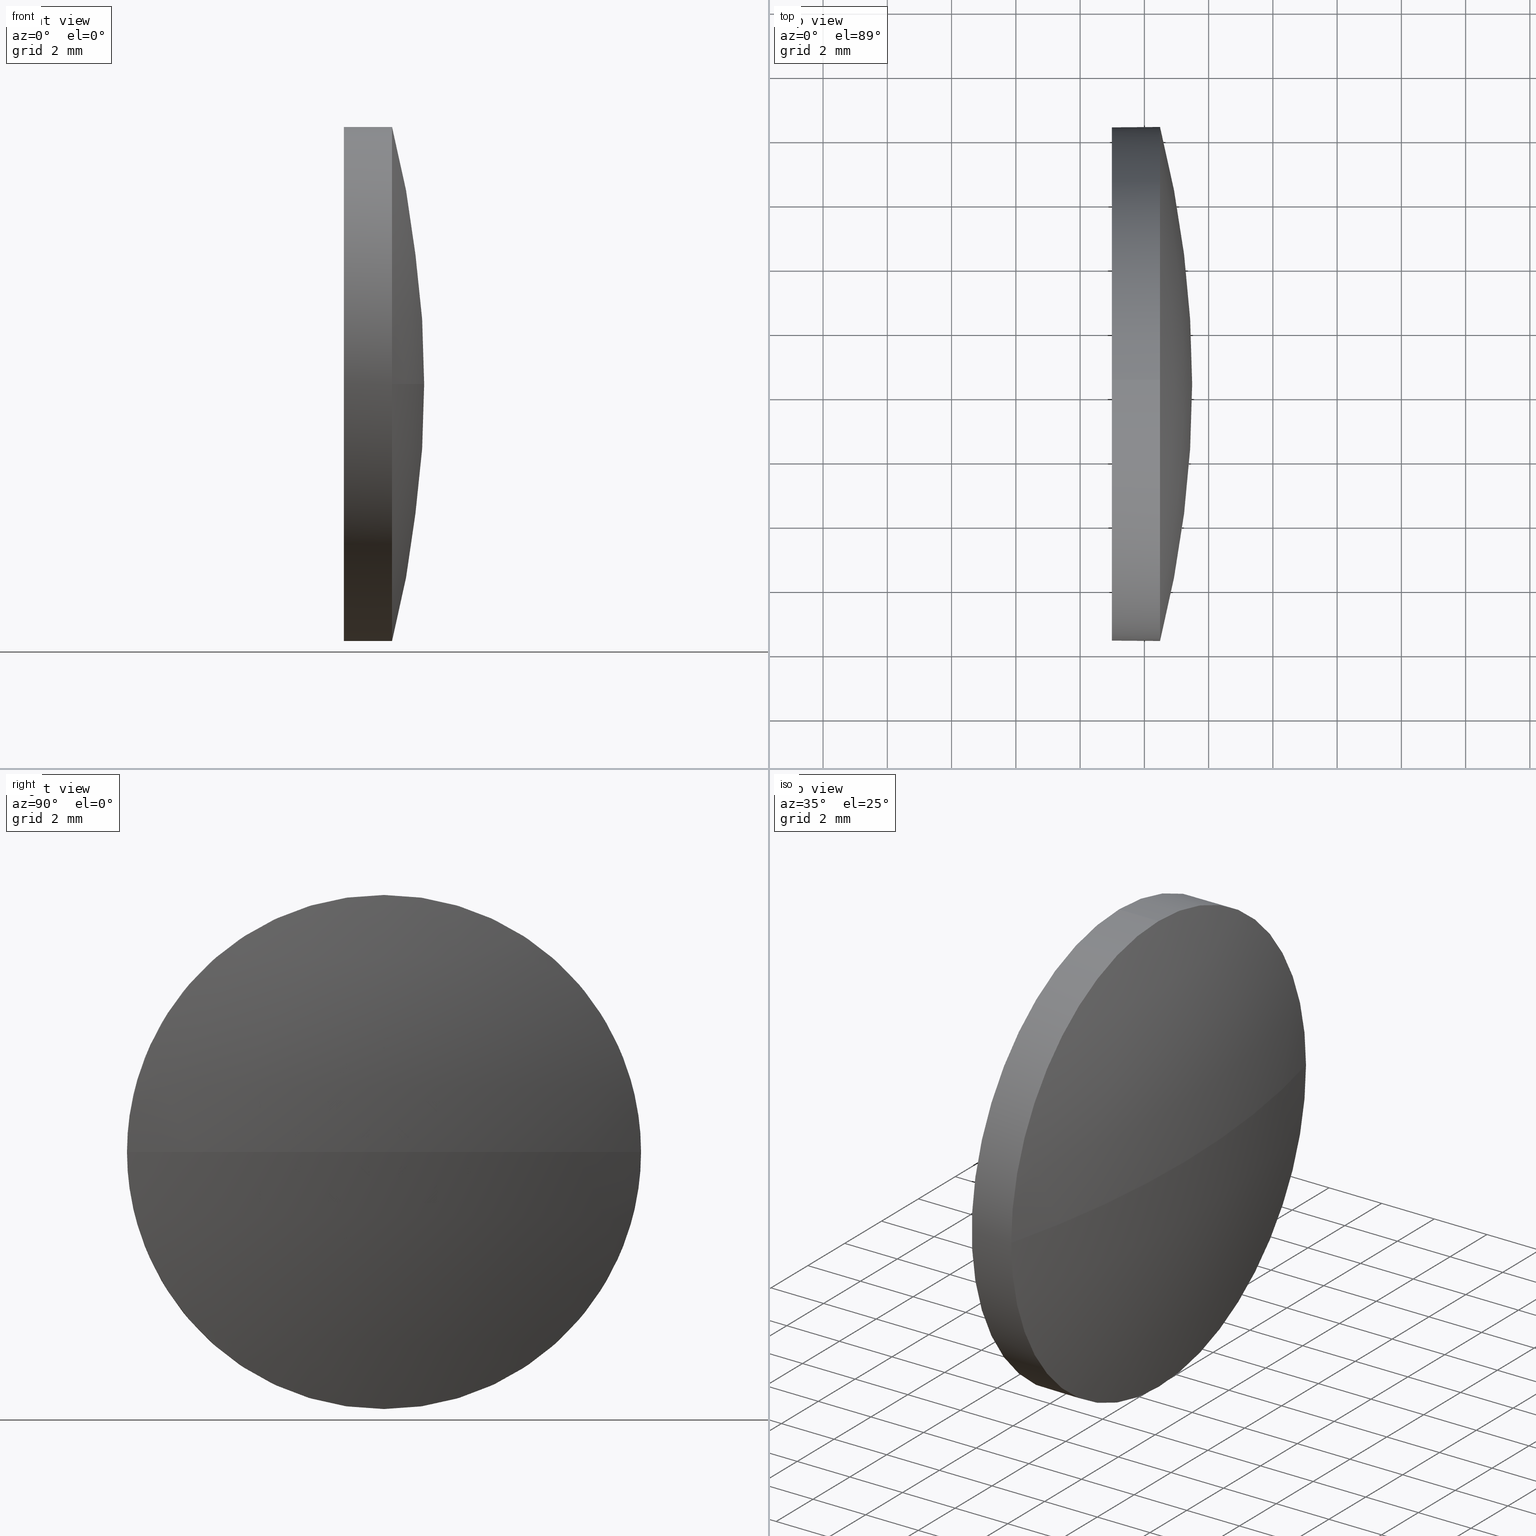
[diagram: canonical four-view strip — front | top / right | iso, engineering-drawing reading convention]
A machine part, canonical four-view strip (front | top / right | iso — engineering-drawing reading convention). The complete STEP part file that produces these views, byte-faithful:
ISO-10303-21;
HEADER;
FILE_DESCRIPTION (( 'STEP AP214' ),
    '1' );
FILE_NAME ('100202.STEP',
    '2019-05-22T07:21:11',
    ( '' ),
    ( '' ),
    'SwSTEP 2.0',
    'SolidWorks 2016',
    '' );
FILE_SCHEMA (( 'AUTOMOTIVE_DESIGN' ));
ENDSEC;

DATA;
#1 = CARTESIAN_POINT ( 'NONE',  ( 646.4878629679331000, 90.34373980560192800, -8.000000000000007100 ) ) ;
#2 = DIRECTION ( 'NONE',  ( 0.0000000000000000000, 0.0000000000000000000, 1.000000000000000000 ) ) ;
#3 = CIRCLE ( 'NONE', #37, 8.000000000000007100 ) ;
#4 = CARTESIAN_POINT ( 'NONE',  ( 646.4878629679331000, 90.34373980560192800, 0.0000000000000000000 ) ) ;
#5 =( LENGTH_UNIT ( ) NAMED_UNIT ( * ) SI_UNIT ( .MILLI., .METRE. ) );
#6 = DIRECTION ( 'NONE',  ( 0.0000000000000000000, 0.0000000000000000000, 1.000000000000000000 ) ) ;
#7 = ORIENTED_EDGE ( 'NONE', *, *, #164, .F. ) ;
#8 = DIRECTION ( 'NONE',  ( 1.000000000000000000, 0.0000000000000000000, 0.0000000000000000000 ) ) ;
#9 = PLANE ( 'NONE',  #124 ) ;
#10 =( GEOMETRIC_REPRESENTATION_CONTEXT ( 3 ) GLOBAL_UNCERTAINTY_ASSIGNED_CONTEXT ( ( #148 ) ) GLOBAL_UNIT_ASSIGNED_CONTEXT ( ( #128, #129, #115 ) ) REPRESENTATION_CONTEXT ( 'NONE', 'WORKASPACE' ) );
#11 = SURFACE_SIDE_STYLE ('',( #159 ) ) ;
#12 = DIRECTION ( 'NONE',  ( 0.0000000000000000000, 0.0000000000000000000, 1.000000000000000000 ) ) ;
#13 = MANIFOLD_SOLID_BREP ( '��ת1', #140 ) ;
#14 = VERTEX_POINT ( 'NONE', #147 ) ;
#15 = ADVANCED_FACE ( 'NONE', ( #181 ), #109, .T. ) ;
#16 = ORIENTED_EDGE ( 'NONE', *, *, #30, .F. ) ;
#17 = CARTESIAN_POINT ( 'NONE',  ( 646.4878629679331000, 90.34373980560192800, 8.000000000000007100 ) ) ;
#18 = DIRECTION ( 'NONE',  ( 0.0000000000000000000, 0.0000000000000000000, 1.000000000000000000 ) ) ;
#19 = CARTESIAN_POINT ( 'NONE',  ( 644.9878629679331000, 90.34373980560192800, 0.0000000000000000000 ) ) ;
#20 = ORIENTED_EDGE ( 'NONE', *, *, #43, .T. ) ;
#21 = DIRECTION ( 'NONE',  ( 0.0000000000000000000, -1.224646799147353200E-016, 1.000000000000000000 ) ) ;
#22 = VECTOR ( 'NONE', #165, 1000.000000000000000 ) ;
#23 = SURFACE_STYLE_USAGE ( .BOTH. , #11 ) ;
#24 = APPLICATION_CONTEXT ( 'automotive_design' ) ;
#25 = DIRECTION ( 'NONE',  ( 0.0000000000000000000, 0.0000000000000000000, 1.000000000000000000 ) ) ;
#26 = ORIENTED_EDGE ( 'NONE', *, *, #95, .T. ) ;
#27 = PRODUCT_DEFINITION_SHAPE ( 'NONE', 'NONE',  #69 ) ;
#28 = PRESENTATION_STYLE_ASSIGNMENT (( #23 ) ) ;
#29 = ORIENTED_EDGE ( 'NONE', *, *, #38, .T. ) ;
#30 = EDGE_CURVE ( 'NONE', #14, #65, #144, .T. ) ;
#31 = CIRCLE ( 'NONE', #67, 32.50000000000008500 ) ;
#32 = EDGE_CURVE ( 'NONE', #180, #130, #31, .T. ) ;
#33 = VERTEX_POINT ( 'NONE', #1 ) ;
#34 = ADVANCED_FACE ( 'NONE', ( #150 ), #9, .F. ) ;
#35 = ADVANCED_BREP_SHAPE_REPRESENTATION ( '100202', ( #13, #113 ), #45 ) ;
#36 = LINE ( 'NONE', #78, #22 ) ;
#37 = AXIS2_PLACEMENT_3D ( 'NONE', #58, #162, #135 ) ;
#38 = EDGE_CURVE ( 'NONE', #65, #14, #61, .T. ) ;
#39 = DIRECTION ( 'NONE',  ( 0.0000000000000000000, -1.000000000000000000, 0.0000000000000000000 ) ) ;
#40 = DIRECTION ( 'NONE',  ( 0.0000000000000000000, -1.000000000000000000, 0.0000000000000000000 ) ) ;
#41 = DIRECTION ( 'NONE',  ( -1.000000000000000000, -0.0000000000000000000, -0.0000000000000000000 ) ) ;
#42 = FACE_OUTER_BOUND ( 'NONE', #160, .T. ) ;
#43 = EDGE_CURVE ( 'NONE', #33, #65, #119, .T. ) ;
#44 =( NAMED_UNIT ( * ) SI_UNIT ( $, .STERADIAN. ) SOLID_ANGLE_UNIT ( ) );
#45 =( GEOMETRIC_REPRESENTATION_CONTEXT ( 3 ) GLOBAL_UNCERTAINTY_ASSIGNED_CONTEXT ( ( #142 ) ) GLOBAL_UNIT_ASSIGNED_CONTEXT ( ( #132, #46, #44 ) ) REPRESENTATION_CONTEXT ( 'NONE', 'WORKASPACE' ) );
#46 =( NAMED_UNIT ( * ) PLANE_ANGLE_UNIT ( ) SI_UNIT ( $, .RADIAN. ) );
#47 = APPLICATION_PROTOCOL_DEFINITION ( 'draft international standard', 'automotive_design', 1998, #24 ) ;
#48 = ORIENTED_EDGE ( 'NONE', *, *, #182, .T. ) ;
#49 = STYLED_ITEM ( 'NONE', ( #28 ), #35 ) ;
#50 = AXIS2_PLACEMENT_3D ( 'NONE', #4, #176, #25 ) ;
#51 = STYLED_ITEM ( 'NONE', ( #55 ), #13 ) ;
#52 = VECTOR ( 'NONE', #75, 1000.000000000000000 ) ;
#53 = AXIS2_PLACEMENT_3D ( 'NONE', #158, #186, #54 ) ;
#54 = DIRECTION ( 'NONE',  ( 0.0000000000000000000, 0.0000000000000000000, 1.000000000000000000 ) ) ;
#55 = PRESENTATION_STYLE_ASSIGNMENT (( #157 ) ) ;
#56 = CARTESIAN_POINT ( 'NONE',  ( 614.9878629679331000, 90.34373980560194200, 0.0000000000000000000 ) ) ;
#57 = DIRECTION ( 'NONE',  ( 0.0000000000000000000, 0.0000000000000000000, 1.000000000000000000 ) ) ;
#58 = CARTESIAN_POINT ( 'NONE',  ( 646.4878629679331000, 90.34373980560192800, 0.0000000000000000000 ) ) ;
#59 = AXIS2_PLACEMENT_3D ( 'NONE', #146, #118, #6 ) ;
#60 = CARTESIAN_POINT ( 'NONE',  ( 646.4878629679331000, 90.34373980560192800, 0.0000000000000000000 ) ) ;
#61 = CIRCLE ( 'NONE', #85, 8.000000000000007100 ) ;
#62 = AXIS2_PLACEMENT_3D ( 'NONE', #88, #57, #39 ) ;
#63 = APPLICATION_CONTEXT ( 'automotive_design' ) ;
#64 = ORIENTED_EDGE ( 'NONE', *, *, #43, .F. ) ;
#65 = VERTEX_POINT ( 'NONE', #90 ) ;
#66 = EDGE_LOOP ( 'NONE', ( #64, #26, #76, #117, #183 ) ) ;
#67 = AXIS2_PLACEMENT_3D ( 'NONE', #56, #21, #161 ) ;
#68 = CYLINDRICAL_SURFACE ( 'NONE', #59, 8.000000000000007100 ) ;
#69 = PRODUCT_DEFINITION ( 'δ֪', '', #156, #116 ) ;
#70 = EDGE_LOOP ( 'NONE', ( #114, #20, #16, #143, #137 ) ) ;
#71 = PRESENTATION_LAYER_ASSIGNMENT (  '', '', ( #49 ) ) ;
#72 = AXIS2_PLACEMENT_3D ( 'NONE', #134, #107, #79 ) ;
#73 = SPHERICAL_SURFACE ( 'NONE', #145, 32.50000000000008500 ) ;
#74 = CARTESIAN_POINT ( 'NONE',  ( 644.9878629679331000, 90.34373980560192800, 0.0000000000000000000 ) ) ;
#75 = DIRECTION ( 'NONE',  ( -1.000000000000000000, -0.0000000000000000000, -0.0000000000000000000 ) ) ;
#76 = ORIENTED_EDGE ( 'NONE', *, *, #121, .T. ) ;
#77 = SURFACE_SIDE_STYLE ('',( #141 ) ) ;
#78 = CARTESIAN_POINT ( 'NONE',  ( 643.3398904949416400, 90.34373980560192800, 8.000000000000007100 ) ) ;
#79 = DIRECTION ( 'NONE',  ( 0.0000000000000000000, 0.0000000000000000000, 1.000000000000000000 ) ) ;
#80 =( NAMED_UNIT ( * ) PLANE_ANGLE_UNIT ( ) SI_UNIT ( $, .RADIAN. ) );
#81 = CARTESIAN_POINT ( 'NONE',  ( 614.9878629679331000, 90.34373980560194200, 0.0000000000000000000 ) ) ;
#82 = AXIS2_PLACEMENT_3D ( 'NONE', #60, #96, #151 ) ;
#83 = ADVANCED_FACE ( 'NONE', ( #42 ), #73, .T. ) ;
#84 = ORIENTED_EDGE ( 'NONE', *, *, #32, .F. ) ;
#85 = AXIS2_PLACEMENT_3D ( 'NONE', #74, #170, #89 ) ;
#86 = PRODUCT_RELATED_PRODUCT_CATEGORY ( 'part', '', ( #123 ) ) ;
#87 = CARTESIAN_POINT ( 'NONE',  ( 614.9878629679331000, 90.34373980560194200, 0.0000000000000000000 ) ) ;
#88 = CARTESIAN_POINT ( 'NONE',  ( 614.9878629679331000, 90.34373980560194200, 0.0000000000000000000 ) ) ;
#89 = DIRECTION ( 'NONE',  ( 0.0000000000000000000, 0.0000000000000000000, 1.000000000000000000 ) ) ;
#90 = CARTESIAN_POINT ( 'NONE',  ( 644.9878629679331000, 90.34373980560192800, -8.000000000000007100 ) ) ;
#91 = MECHANICAL_DESIGN_GEOMETRIC_PRESENTATION_REPRESENTATION (  '', ( #49 ), #100 ) ;
#92 = CARTESIAN_POINT ( 'NONE',  ( 647.4878629679331000, 90.34373980560194200, 0.0000000000000000000 ) ) ;
#93 =( NAMED_UNIT ( * ) SI_UNIT ( $, .STERADIAN. ) SOLID_ANGLE_UNIT ( ) );
#94 = FACE_OUTER_BOUND ( 'NONE', #70, .T. ) ;
#95 = EDGE_CURVE ( 'NONE', #33, #108, #105, .T. ) ;
#96 = DIRECTION ( 'NONE',  ( -1.000000000000000000, -0.0000000000000000000, -0.0000000000000000000 ) ) ;
#97 = CARTESIAN_POINT ( 'NONE',  ( 646.4878629679331000, 90.34373980560192800, 0.0000000000000000000 ) ) ;
#98 = ORIENTED_EDGE ( 'NONE', *, *, #95, .F. ) ;
#99 = VERTEX_POINT ( 'NONE', #17 ) ;
#100 =( GEOMETRIC_REPRESENTATION_CONTEXT ( 3 ) GLOBAL_UNCERTAINTY_ASSIGNED_CONTEXT ( ( #171 ) ) GLOBAL_UNIT_ASSIGNED_CONTEXT ( ( #5, #80, #93 ) ) REPRESENTATION_CONTEXT ( 'NONE', 'WORKASPACE' ) );
#101 = AXIS2_PLACEMENT_3D ( 'NONE', #81, #178, #131 ) ;
#102 = FILL_AREA_STYLE ('',( #184 ) ) ;
#103 = EDGE_LOOP ( 'NONE', ( #122, #29 ) ) ;
#104 = EDGE_CURVE ( 'NONE', #99, #130, #127, .T. ) ;
#105 = CIRCLE ( 'NONE', #133, 8.000000000000007100 ) ;
#106 = CARTESIAN_POINT ( 'NONE',  ( 0.0000000000000000000, 0.0000000000000000000, 0.0000000000000000000 ) ) ;
#107 = DIRECTION ( 'NONE',  ( -1.000000000000000000, -0.0000000000000000000, -0.0000000000000000000 ) ) ;
#108 = VERTEX_POINT ( 'NONE', #175 ) ;
#109 = SPHERICAL_SURFACE ( 'NONE', #62, 32.50000000000008500 ) ;
#110 = PRESENTATION_LAYER_ASSIGNMENT (  '', '', ( #51 ) ) ;
#111 = CIRCLE ( 'NONE', #50, 8.000000000000007100 ) ;
#112 = MECHANICAL_DESIGN_GEOMETRIC_PRESENTATION_REPRESENTATION (  '', ( #51 ), #10 ) ;
#113 = AXIS2_PLACEMENT_3D ( 'NONE', #106, #12, #120 ) ;
#114 = ORIENTED_EDGE ( 'NONE', *, *, #164, .T. ) ;
#115 =( NAMED_UNIT ( * ) SI_UNIT ( $, .STERADIAN. ) SOLID_ANGLE_UNIT ( ) );
#116 = PRODUCT_DEFINITION_CONTEXT ( 'detailed design', #63, 'design' ) ;
#117 = ORIENTED_EDGE ( 'NONE', *, *, #168, .T. ) ;
#118 = DIRECTION ( 'NONE',  ( -1.000000000000000000, -0.0000000000000000000, -0.0000000000000000000 ) ) ;
#119 = LINE ( 'NONE', #172, #52 ) ;
#120 = DIRECTION ( 'NONE',  ( 1.000000000000000000, 0.0000000000000000000, 0.0000000000000000000 ) ) ;
#121 = EDGE_CURVE ( 'NONE', #108, #99, #3, .T. ) ;
#122 = ORIENTED_EDGE ( 'NONE', *, *, #30, .T. ) ;
#123 = PRODUCT ( '100202', '100202', '', ( #152 ) ) ;
#124 = AXIS2_PLACEMENT_3D ( 'NONE', #19, #8, #126 ) ;
#125 = ORIENTED_EDGE ( 'NONE', *, *, #32, .T. ) ;
#126 = DIRECTION ( 'NONE',  ( 0.0000000000000000000, 0.0000000000000000000, -1.000000000000000000 ) ) ;
#127 = CIRCLE ( 'NONE', #82, 8.000000000000007100 ) ;
#128 =( LENGTH_UNIT ( ) NAMED_UNIT ( * ) SI_UNIT ( .MILLI., .METRE. ) );
#129 =( NAMED_UNIT ( * ) PLANE_ANGLE_UNIT ( ) SI_UNIT ( $, .RADIAN. ) );
#130 = VERTEX_POINT ( 'NONE', #163 ) ;
#131 = DIRECTION ( 'NONE',  ( -1.000000000000000000, 0.0000000000000000000, 0.0000000000000000000 ) ) ;
#132 =( LENGTH_UNIT ( ) NAMED_UNIT ( * ) SI_UNIT ( .MILLI., .METRE. ) );
#133 = AXIS2_PLACEMENT_3D ( 'NONE', #97, #41, #2 ) ;
#134 = CARTESIAN_POINT ( 'NONE',  ( 643.3398904949416400, 90.34373980560192800, 0.0000000000000000000 ) ) ;
#135 = DIRECTION ( 'NONE',  ( 0.0000000000000000000, 0.0000000000000000000, 1.000000000000000000 ) ) ;
#136 = ORIENTED_EDGE ( 'NONE', *, *, #104, .F. ) ;
#137 = ORIENTED_EDGE ( 'NONE', *, *, #104, .T. ) ;
#138 = ADVANCED_FACE ( 'NONE', ( #94 ), #68, .T. ) ;
#139 = CYLINDRICAL_SURFACE ( 'NONE', #72, 8.000000000000007100 ) ;
#140 = CLOSED_SHELL ( 'NONE', ( #138, #15, #83, #154, #34 ) ) ;
#141 = SURFACE_STYLE_FILL_AREA ( #102 ) ;
#142 = UNCERTAINTY_MEASURE_WITH_UNIT (LENGTH_MEASURE( 1.000000000000000100E-005 ), #132, 'distance_accuracy_value', 'NONE');
#143 = ORIENTED_EDGE ( 'NONE', *, *, #168, .F. ) ;
#144 = CIRCLE ( 'NONE', #53, 8.000000000000007100 ) ;
#145 = AXIS2_PLACEMENT_3D ( 'NONE', #87, #18, #40 ) ;
#146 = CARTESIAN_POINT ( 'NONE',  ( 643.3398904949416400, 90.34373980560192800, 0.0000000000000000000 ) ) ;
#147 = CARTESIAN_POINT ( 'NONE',  ( 644.9878629679331000, 90.34373980560192800, 8.000000000000007100 ) ) ;
#148 = UNCERTAINTY_MEASURE_WITH_UNIT (LENGTH_MEASURE( 1.000000000000000100E-005 ), #128, 'distance_accuracy_value', 'NONE');
#149 = FILL_AREA_STYLE ('',( #177 ) ) ;
#150 = FACE_OUTER_BOUND ( 'NONE', #103, .T. ) ;
#151 = DIRECTION ( 'NONE',  ( 0.0000000000000000000, 0.0000000000000000000, 1.000000000000000000 ) ) ;
#152 = PRODUCT_CONTEXT ( 'NONE', #24, 'mechanical' ) ;
#153 = FACE_OUTER_BOUND ( 'NONE', #66, .T. ) ;
#154 = ADVANCED_FACE ( 'NONE', ( #153 ), #139, .T. ) ;
#155 = COLOUR_RGB ( '',1.000000000000000000, 1.000000000000000000, 1.000000000000000000 ) ;
#156 = PRODUCT_DEFINITION_FORMATION_WITH_SPECIFIED_SOURCE ( '�κ�', '', #123, .NOT_KNOWN. ) ;
#157 = SURFACE_STYLE_USAGE ( .BOTH. , #77 ) ;
#158 = CARTESIAN_POINT ( 'NONE',  ( 644.9878629679331000, 90.34373980560192800, 0.0000000000000000000 ) ) ;
#159 = SURFACE_STYLE_FILL_AREA ( #149 ) ;
#160 = EDGE_LOOP ( 'NONE', ( #84, #48, #98, #7 ) ) ;
#161 = DIRECTION ( 'NONE',  ( 0.0000000000000000000, -1.000000000000000000, -1.224646799147353200E-016 ) ) ;
#162 = DIRECTION ( 'NONE',  ( -1.000000000000000000, -0.0000000000000000000, -0.0000000000000000000 ) ) ;
#163 = CARTESIAN_POINT ( 'NONE',  ( 646.4878629679331000, 98.34373980560194200, 9.797174393178831600E-016 ) ) ;
#164 = EDGE_CURVE ( 'NONE', #130, #33, #111, .T. ) ;
#165 = DIRECTION ( 'NONE',  ( -1.000000000000000000, -0.0000000000000000000, -0.0000000000000000000 ) ) ;
#166 = APPLICATION_PROTOCOL_DEFINITION ( 'draft international standard', 'automotive_design', 1998, #63 ) ;
#167 = ORIENTED_EDGE ( 'NONE', *, *, #182, .F. ) ;
#168 = EDGE_CURVE ( 'NONE', #99, #14, #36, .T. ) ;
#169 = CIRCLE ( 'NONE', #101, 32.50000000000008500 ) ;
#170 = DIRECTION ( 'NONE',  ( -1.000000000000000000, -0.0000000000000000000, -0.0000000000000000000 ) ) ;
#171 = UNCERTAINTY_MEASURE_WITH_UNIT (LENGTH_MEASURE( 1.000000000000000100E-005 ), #5, 'distance_accuracy_value', 'NONE');
#172 = CARTESIAN_POINT ( 'NONE',  ( 643.3398904949416400, 90.34373980560192800, -8.000000000000007100 ) ) ;
#173 = EDGE_LOOP ( 'NONE', ( #167, #125, #136, #185 ) ) ;
#174 = SHAPE_DEFINITION_REPRESENTATION ( #27, #35 ) ;
#175 = CARTESIAN_POINT ( 'NONE',  ( 646.4878629679331000, 82.34373980560191300, 0.0000000000000000000 ) ) ;
#176 = DIRECTION ( 'NONE',  ( -1.000000000000000000, -0.0000000000000000000, -0.0000000000000000000 ) ) ;
#177 = FILL_AREA_STYLE_COLOUR ( '', #155 ) ;
#178 = DIRECTION ( 'NONE',  ( 0.0000000000000000000, 0.0000000000000000000, -1.000000000000000000 ) ) ;
#179 = COLOUR_RGB ( '',1.000000000000000000, 1.000000000000000000, 1.000000000000000000 ) ;
#180 = VERTEX_POINT ( 'NONE', #92 ) ;
#181 = FACE_OUTER_BOUND ( 'NONE', #173, .T. ) ;
#182 = EDGE_CURVE ( 'NONE', #180, #108, #169, .T. ) ;
#183 = ORIENTED_EDGE ( 'NONE', *, *, #38, .F. ) ;
#184 = FILL_AREA_STYLE_COLOUR ( '', #179 ) ;
#185 = ORIENTED_EDGE ( 'NONE', *, *, #121, .F. ) ;
#186 = DIRECTION ( 'NONE',  ( -1.000000000000000000, -0.0000000000000000000, -0.0000000000000000000 ) ) ;
ENDSEC;
END-ISO-10303-21;
